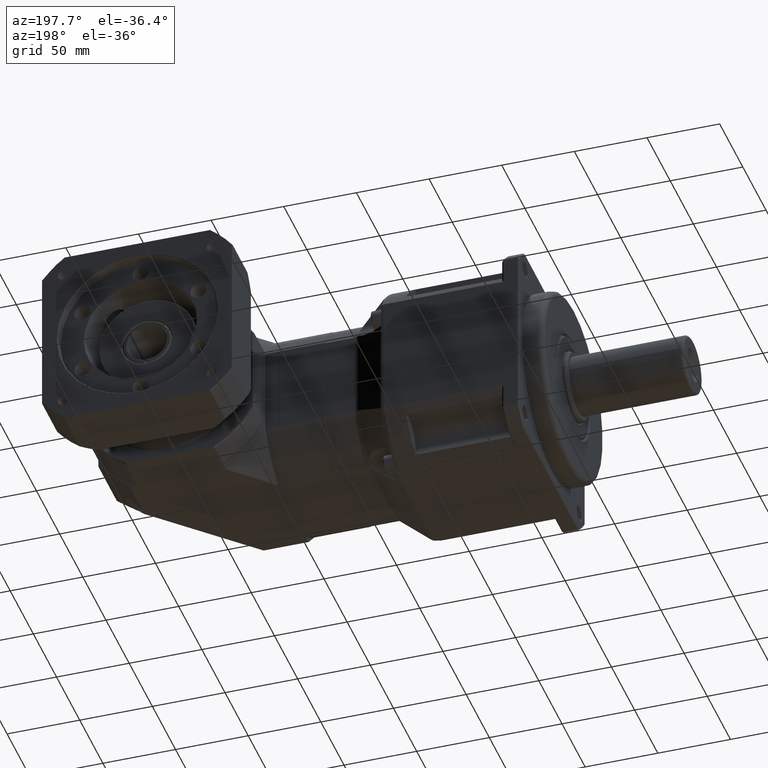
[diagram: clean part render]
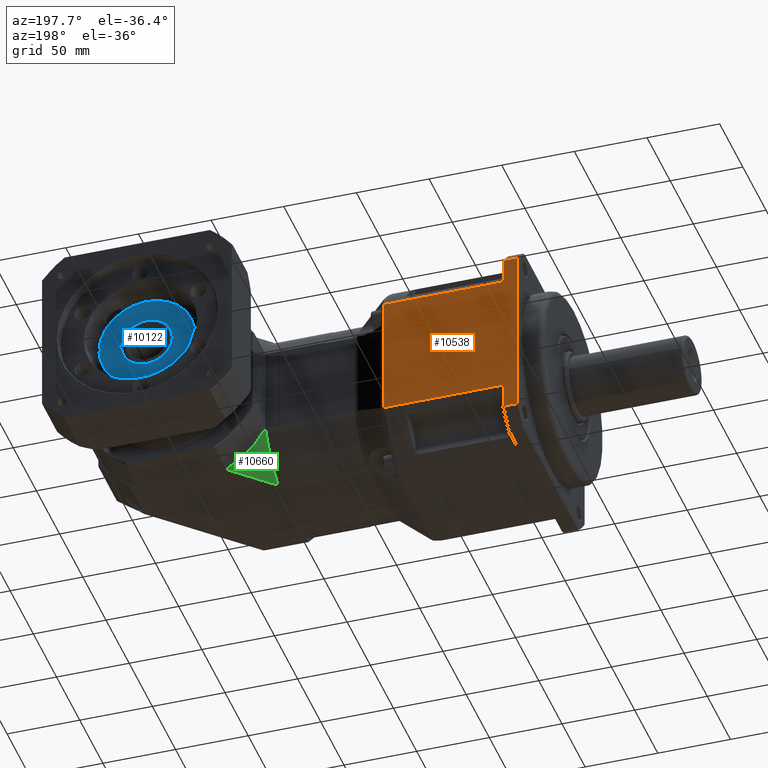
[diagram: same view with three faces highlighted in distinct colors, each labeled with its STEP entity id]
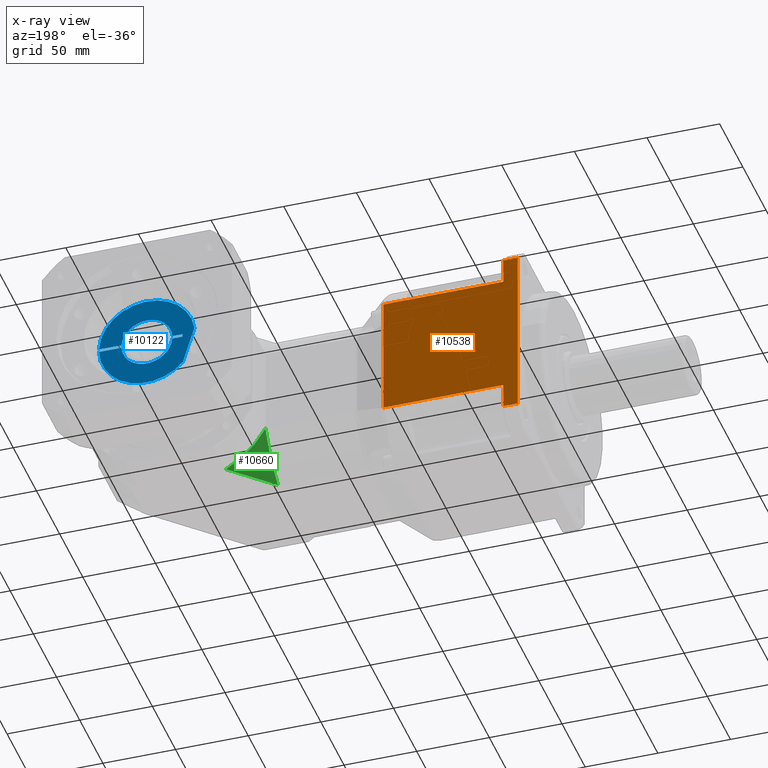
[diagram: x-ray of the same camera — body ghosted, the three highlighted faces saturated]
A machine part, auxiliary view with three faces highlighted in distinct colors.
The next image is the same camera in x-ray (body ghosted, the three faces saturated) — at least one of them is partly hidden behind the body in this view.
Their STEP definitions:

[orange] entity #10538 — the highlighted planar face has unit normal (-0, 1, -0).
#124=B_SPLINE_CURVE_WITH_KNOTS('',3,(#17457,#17458,#17459,#17460),
 .UNSPECIFIED.,.F.,.F.,(4,4),(0.231609461241533,0.26889615335008),
 .UNSPECIFIED.);
#125=B_SPLINE_CURVE_WITH_KNOTS('',3,(#17463,#17464,#17465,#17466),
 .UNSPECIFIED.,.F.,.F.,(4,4),(0.,0.0373027080613228),.UNSPECIFIED.);
#795=LINE('',#17419,#1323);
#799=LINE('',#17445,#1327);
#800=LINE('',#17447,#1328);
#801=LINE('',#17449,#1329);
#802=LINE('',#17451,#1330);
#803=LINE('',#17453,#1331);
#804=LINE('',#17455,#1332);
#805=LINE('',#17462,#1333);
#1323=VECTOR('',#13924,17.2746654490736);
#1327=VECTOR('',#13942,82.1624407477355);
#1328=VECTOR('',#13943,10.);
#1329=VECTOR('',#13944,118.57908753233);
#1330=VECTOR('',#13945,10.);
#1331=VECTOR('',#13946,17.2746654490736);
#1332=VECTOR('',#13947,82.1624407477355);
#1333=VECTOR('',#13948,83.9761787812403);
#1779=PLANE('',#11637);
#2710=FACE_OUTER_BOUND('',#3675,.T.);
#3675=EDGE_LOOP('',(#8270,#8271,#8272,#8273,#8274,#8275,#8276,#8277,#8278,
#8279));
#5081=VERTEX_POINT('',#17417);
#5082=VERTEX_POINT('',#17418);
#5089=VERTEX_POINT('',#17444);
#5090=VERTEX_POINT('',#17446);
#5091=VERTEX_POINT('',#17448);
#5092=VERTEX_POINT('',#17450);
#5093=VERTEX_POINT('',#17452);
#5094=VERTEX_POINT('',#17454);
#5095=VERTEX_POINT('',#17456);
#5096=VERTEX_POINT('',#17461);
#6214=EDGE_CURVE('',#5081,#5082,#795,.T.);
#6224=EDGE_CURVE('',#5089,#5082,#799,.T.);
#6225=EDGE_CURVE('',#5081,#5090,#800,.T.);
#6226=EDGE_CURVE('',#5091,#5090,#801,.T.);
#6227=EDGE_CURVE('',#5091,#5092,#802,.T.);
#6228=EDGE_CURVE('',#5093,#5092,#803,.T.);
#6229=EDGE_CURVE('',#5093,#5094,#804,.T.);
#6230=EDGE_CURVE('',#5095,#5094,#124,.T.);
#6231=EDGE_CURVE('',#5096,#5095,#805,.T.);
#6232=EDGE_CURVE('',#5089,#5096,#125,.T.);
#8270=ORIENTED_EDGE('',*,*,#6224,.T.);
#8271=ORIENTED_EDGE('',*,*,#6214,.F.);
#8272=ORIENTED_EDGE('',*,*,#6225,.T.);
#8273=ORIENTED_EDGE('',*,*,#6226,.F.);
#8274=ORIENTED_EDGE('',*,*,#6227,.T.);
#8275=ORIENTED_EDGE('',*,*,#6228,.F.);
#8276=ORIENTED_EDGE('',*,*,#6229,.T.);
#8277=ORIENTED_EDGE('',*,*,#6230,.F.);
#8278=ORIENTED_EDGE('',*,*,#6231,.F.);
#8279=ORIENTED_EDGE('',*,*,#6232,.F.);
#10538=ADVANCED_FACE('',(#2710),#1779,.T.);
#11637=AXIS2_PLACEMENT_3D('',#17443,#13940,#13941);
#13924=DIRECTION('',(7.96327511727489E-16,6.79992056402826E-15,1.));
#13940=DIRECTION('center_axis',(-1.66533453693795E-16,1.,-6.79992056402826E-15));
#13941=DIRECTION('ref_axis',(0.,-7.105427357601E-15,-1.));
#13942=DIRECTION('',(-1.,-1.66533453693789E-16,7.9632751172749E-16));
#13943=DIRECTION('',(-1.,-1.66533453693789E-16,7.9632751172749E-16));
#13944=DIRECTION('',(-7.96327511727489E-16,-6.79992056402826E-15,-1.));
#13945=DIRECTION('',(1.,1.66533453693789E-16,-7.9632751172749E-16));
#13946=DIRECTION('',(7.96327511727489E-16,6.79992056402826E-15,1.));
#13947=DIRECTION('',(1.,1.66533453693789E-16,-7.9632751172749E-16));
#13948=DIRECTION('',(2.48166054006035E-15,6.75848266240571E-15,1.));
#17417=CARTESIAN_POINT('',(-212.232413184371,121.641832456553,-173.317323755821));
#17418=CARTESIAN_POINT('',(-212.232413184371,121.641832456553,-156.042658306748));
#17419=CARTESIAN_POINT('',(-212.232413184371,121.641832456553,-78.5277799896562));
#17443=CARTESIAN_POINT('Origin',(-144.232413184371,121.641832456553,-43.0277799896563));
#17444=CARTESIAN_POINT('',(-130.069972436636,121.641832456553,-156.042658306748));
#17445=CARTESIAN_POINT('',(-144.232413184371,121.641832456553,-156.042658306748));
#17446=CARTESIAN_POINT('',(-222.232413184371,121.641832456553,-173.317323755821));
#17447=CARTESIAN_POINT('',(-144.232413184371,121.641832456553,-173.317323755821));
#17448=CARTESIAN_POINT('',(-222.232413184371,121.641832456553,-54.7382362234912));
#17449=CARTESIAN_POINT('',(-222.232413184371,121.641832456553,-78.5277799896562));
#17450=CARTESIAN_POINT('',(-212.232413184371,121.641832456553,-54.7382362234912));
#17451=CARTESIAN_POINT('',(-144.232413184371,121.641832456553,-54.7382362234913));
#17452=CARTESIAN_POINT('',(-212.232413184371,121.641832456553,-72.0129016725648));
#17453=CARTESIAN_POINT('',(-212.232413184371,121.641832456553,-78.5277799896562));
#17454=CARTESIAN_POINT('',(-130.069972436636,121.641832456553,-72.0129016725652));
#17455=CARTESIAN_POINT('',(-144.232413184371,121.641832456553,-72.0129016725649));
#17456=CARTESIAN_POINT('',(-129.700922631968,121.641832456553,-72.0396905967272));
#17457=CARTESIAN_POINT('Ctrl Pts',(-129.701053399744,121.641462299967,-72.0399075455455));
#17458=CARTESIAN_POINT('Ctrl Pts',(-129.822999981692,121.641676654801,-72.0220349851104));
#17459=CARTESIAN_POINT('Ctrl Pts',(-129.946060759789,121.641831120048,-72.0129017329612));
#17460=CARTESIAN_POINT('Ctrl Pts',(-130.069972437906,121.641831557224,-72.012902318567));
#17461=CARTESIAN_POINT('',(-129.70092261609,121.641832456553,-156.015869377967));
#17462=CARTESIAN_POINT('',(-129.70092261609,121.641832456553,-57.5203408311105));
#17463=CARTESIAN_POINT('Ctrl Pts',(-130.069972439682,121.641830305855,-156.042656745542));
#17464=CARTESIAN_POINT('Ctrl Pts',(-129.945639658395,121.6418296304,-156.042657652277));
#17465=CARTESIAN_POINT('Ctrl Pts',(-129.822580282076,121.641673946764,-156.033463741199));
#17466=CARTESIAN_POINT('Ctrl Pts',(-129.701053431712,121.641460559964,-156.015652465985));

[blue] entity #10122 — the highlighted planar face has unit normal (-0, 1, -0).
#572=LINE('',#15331,#1100);
#573=LINE('',#15336,#1101);
#574=LINE('',#15340,#1102);
#575=LINE('',#15342,#1103);
#576=LINE('',#15344,#1104);
#577=LINE('',#15348,#1105);
#1100=VECTOR('',#12271,27.0547592855674);
#1101=VECTOR('',#12276,15.5134397952851);
#1102=VECTOR('',#12279,7.02859479034386);
#1103=VECTOR('',#12280,2.);
#1104=VECTOR('',#12281,7.02859479034386);
#1105=VECTOR('',#12284,15.5134397952851);
#1597=PLANE('',#10916);
#2294=FACE_OUTER_BOUND('',#3020,.T.);
#3020=EDGE_LOOP('',(#6983,#6984,#6985,#6986,#6987,#6988,#6989,#6990,#6991,
#6992));
#4057=CIRCLE('',#10917,33.);
#4058=CIRCLE('',#10918,17.5);
#4059=CIRCLE('',#10919,17.5);
#4060=CIRCLE('',#10920,33.);
#4588=VERTEX_POINT('',#15309);
#4594=VERTEX_POINT('',#15327);
#4595=VERTEX_POINT('',#15333);
#4596=VERTEX_POINT('',#15335);
#4597=VERTEX_POINT('',#15337);
#4598=VERTEX_POINT('',#15339);
#4599=VERTEX_POINT('',#15341);
#4600=VERTEX_POINT('',#15343);
#4601=VERTEX_POINT('',#15345);
#4602=VERTEX_POINT('',#15347);
#5585=EDGE_CURVE('',#4588,#4594,#572,.T.);
#5586=EDGE_CURVE('',#4595,#4594,#4057,.T.);
#5587=EDGE_CURVE('',#4595,#4596,#573,.T.);
#5588=EDGE_CURVE('',#4597,#4596,#4058,.T.);
#5589=EDGE_CURVE('',#4597,#4598,#574,.T.);
#5590=EDGE_CURVE('',#4598,#4599,#575,.T.);
#5591=EDGE_CURVE('',#4599,#4600,#576,.T.);
#5592=EDGE_CURVE('',#4601,#4600,#4059,.T.);
#5593=EDGE_CURVE('',#4601,#4602,#577,.T.);
#5594=EDGE_CURVE('',#4588,#4602,#4060,.T.);
#6983=ORIENTED_EDGE('',*,*,#5585,.T.);
#6984=ORIENTED_EDGE('',*,*,#5586,.F.);
#6985=ORIENTED_EDGE('',*,*,#5587,.T.);
#6986=ORIENTED_EDGE('',*,*,#5588,.F.);
#6987=ORIENTED_EDGE('',*,*,#5589,.T.);
#6988=ORIENTED_EDGE('',*,*,#5590,.T.);
#6989=ORIENTED_EDGE('',*,*,#5591,.T.);
#6990=ORIENTED_EDGE('',*,*,#5592,.F.);
#6991=ORIENTED_EDGE('',*,*,#5593,.T.);
#6992=ORIENTED_EDGE('',*,*,#5594,.F.);
#10122=ADVANCED_FACE('',(#2294),#1597,.T.);
#10916=AXIS2_PLACEMENT_3D('',#15332,#12272,#12273);
#10917=AXIS2_PLACEMENT_3D('',#15334,#12274,#12275);
#10918=AXIS2_PLACEMENT_3D('',#15338,#12277,#12278);
#10919=AXIS2_PLACEMENT_3D('',#15346,#12282,#12283);
#10920=AXIS2_PLACEMENT_3D('',#15349,#12285,#12286);
#12271=DIRECTION('',(-0.291750494731008,4.72891697183442E-15,0.956494458334293));
#12272=DIRECTION('center_axis',(-2.12156922109039E-16,1.,-5.00872097802156E-15));
#12273=DIRECTION('ref_axis',(-0.00807702871444374,5.6843418860808E-15,0.99996738027155));
#12274=DIRECTION('center_axis',(2.12156922109039E-16,-1.,5.00872097802156E-15));
#12275=DIRECTION('ref_axis',(-0.99996738027155,-2.52605584769968E-16,-0.00807702871444366));
#12276=DIRECTION('',(-0.99996738027155,-2.52605584769967E-16,-0.00807702871444349));
#12277=DIRECTION('center_axis',(-2.12156922109039E-16,1.,-5.00872097802156E-15));
#12278=DIRECTION('ref_axis',(-0.99996738027155,-2.52605584769968E-16,-0.00807702871444366));
#12279=DIRECTION('',(-0.99996738027155,-2.52605584769967E-16,-0.00807702871444349));
#12280=DIRECTION('',(0.00807702871444366,-5.00684399735153E-15,-0.99996738027155));
#12281=DIRECTION('',(0.99996738027155,2.52605584769967E-16,0.00807702871444347));
#12282=DIRECTION('center_axis',(-2.12156922109039E-16,1.,-5.00872097802156E-15));
#12283=DIRECTION('ref_axis',(-0.99996738027155,-2.52605584769968E-16,-0.00807702871444366));
#12284=DIRECTION('',(0.99996738027155,2.52605584769967E-16,0.00807702871444347));
#12285=DIRECTION('center_axis',(2.12156922109039E-16,-1.,5.00872097802156E-15));
#12286=DIRECTION('ref_axis',(-0.99996738027155,-2.52605584769968E-16,-0.00807702871444366));
#15309=CARTESIAN_POINT('',(-11.5762766770372,183.641832456554,-135.748333545167));
#15327=CARTESIAN_POINT('',(-19.4695160834298,183.641832456554,-109.870606216954));
#15331=CARTESIAN_POINT('',(-13.3777861116078,183.641832456554,-129.842143763407));
#15332=CARTESIAN_POINT('Origin',(13.2675868156288,183.641832456554,-114.027779989657));
#15333=CARTESIAN_POINT('',(46.2432788351686,183.641832456554,-112.761393069139));
#15334=CARTESIAN_POINT('Origin',(13.2675868156288,183.641832456554,-114.027779989657));
#15335=CARTESIAN_POINT('',(30.7303450840769,183.641832456554,-112.886695567826));
#15336=CARTESIAN_POINT('',(34.513876644038,183.641832456554,-112.856134877892));
#15337=CARTESIAN_POINT('',(-4.21132551024825,183.641832456554,-113.168929650946));
#15338=CARTESIAN_POINT('Origin',(13.2675868156288,183.641832456554,-114.027779989657));
#15339=CARTESIAN_POINT('',(-11.2396910297387,183.641832456554,-113.22569981289));
#15340=CARTESIAN_POINT('',(34.513876644038,183.641832456554,-112.856134877892));
#15341=CARTESIAN_POINT('',(-11.2235369723098,183.641832456554,-115.225634573433));
#15342=CARTESIAN_POINT('',(-11.2356525153814,183.641832456554,-113.725683503025));
#15343=CARTESIAN_POINT('',(-4.19517145281936,183.641832456554,-115.168864411489));
#15344=CARTESIAN_POINT('',(1.02606343601672,183.641832456554,-115.126690971681));
#15345=CARTESIAN_POINT('',(30.7464991415058,183.641832456554,-114.886630328369));
#15346=CARTESIAN_POINT('Origin',(13.2675868156288,183.641832456554,-114.027779989657));
#15347=CARTESIAN_POINT('',(46.2594328925974,183.641832456554,-114.761327829682));
#15348=CARTESIAN_POINT('',(1.02606343601672,183.641832456554,-115.126690971681));
#15349=CARTESIAN_POINT('Origin',(13.2675868156288,183.641832456554,-114.027779989657));

[green] entity #10660 — the highlighted face is a freeform B-spline surface patch.
#25=B_SPLINE_SURFACE_WITH_KNOTS('',3,3,((#18809,#18810,#18811,#18812),(#18813,
#18814,#18815,#18816),(#18817,#18818,#18819,#18820),(#18821,#18822,#18823,
#18824),(#18825,#18826,#18827,#18828)),.UNSPECIFIED.,.F.,.F.,.F.,(4,1,4),
(4,4),(0.,0.571428571428571,1.),(0.,1.),.UNSPECIFIED.);
#940=LINE('',#18807,#1468);
#1468=VECTOR('',#14495,38.4512093377473);
#2832=FACE_OUTER_BOUND('',#3822,.T.);
#3822=EDGE_LOOP('',(#8938,#8939,#8940));
#4422=CIRCLE('',#11799,65.);
#4435=CIRCLE('',#11827,65.);
#5286=VERTEX_POINT('',#18709);
#5288=VERTEX_POINT('',#18713);
#5307=VERTEX_POINT('',#18783);
#6514=EDGE_CURVE('',#5288,#5286,#4422,.T.);
#6551=EDGE_CURVE('',#5307,#5288,#4435,.T.);
#6560=EDGE_CURVE('',#5286,#5307,#940,.T.);
#8938=ORIENTED_EDGE('',*,*,#6551,.F.);
#8939=ORIENTED_EDGE('',*,*,#6560,.F.);
#8940=ORIENTED_EDGE('',*,*,#6514,.F.);
#10660=ADVANCED_FACE('',(#2832),#25,.T.);
#11799=AXIS2_PLACEMENT_3D('',#18715,#14381,#14382);
#11827=AXIS2_PLACEMENT_3D('',#18785,#14460,#14461);
#14381=DIRECTION('center_axis',(-1.,-4.95042613617177E-16,2.56863691101278E-15));
#14382=DIRECTION('ref_axis',(2.56863691101278E-15,6.75848266240562E-15,
1.));
#14460=DIRECTION('center_axis',(-4.95042613617194E-16,1.,-6.75848266240562E-15));
#14461=DIRECTION('ref_axis',(-1.,-4.95042613617177E-16,2.56863691101278E-15));
#14495=DIRECTION('',(0.707106781186548,0.707106781186547,-6.1332926538412E-15));
#18709=CARTESIAN_POINT('',(-44.2324131843714,80.9527215890082,-171.527779989657));
#18713=CARTESIAN_POINT('',(-44.2324131843713,108.141832456553,-144.338669122112));
#18715=CARTESIAN_POINT('Origin',(-44.2324131843712,50.6418324565532,-114.027779989656));
#18783=CARTESIAN_POINT('',(-17.0433023168267,108.141832456553,-171.527779989657));
#18785=CARTESIAN_POINT('Origin',(13.2675868156288,108.141832456553,-114.027779989657));
#18807=CARTESIAN_POINT('',(-17.0433023168267,108.141832456553,-171.527779989657));
#18809=CARTESIAN_POINT('Ctrl Pts',(-44.2324131843713,108.141832456553,-144.338669122112));
#18810=CARTESIAN_POINT('Ctrl Pts',(-44.2324131843713,108.141832456553,-144.338669122112));
#18811=CARTESIAN_POINT('Ctrl Pts',(-44.2324131843713,108.141832456553,-144.338669122112));
#18812=CARTESIAN_POINT('Ctrl Pts',(-44.2324131843713,108.141832456553,-144.338669122112));
#18813=CARTESIAN_POINT('Ctrl Pts',(-40.7651890833885,108.141832456553,-150.916021074254));
#18814=CARTESIAN_POINT('Ctrl Pts',(-41.9196528579009,106.987368682041,-150.916021074254));
#18815=CARTESIAN_POINT('Ctrl Pts',(-43.077949409859,105.829072130082,-150.916021074254));
#18816=CARTESIAN_POINT('Ctrl Pts',(-44.2324131843713,104.67460835557,-150.916021074254));
#18817=CARTESIAN_POINT('Ctrl Pts',(-32.7030579285894,108.141832456553,-161.37157969235));
#18818=CARTESIAN_POINT('Ctrl Pts',(-36.5465461269534,104.298344258189,-161.37157969235));
#18819=CARTESIAN_POINT('Ctrl Pts',(-40.3889249860073,100.455965399135,-161.37157969235));
#18820=CARTESIAN_POINT('Ctrl Pts',(-44.2324131843714,96.6124772007709,-161.37157969235));
#18821=CARTESIAN_POINT('Ctrl Pts',(-21.9763162809331,108.141832456553,-168.92736191392));
#18822=CARTESIAN_POINT('Ctrl Pts',(-29.3950181471865,100.723130590299,-168.92736191392));
#18823=CARTESIAN_POINT('Ctrl Pts',(-36.813711318118,93.304437419368,-168.92736191392));
#18824=CARTESIAN_POINT('Ctrl Pts',(-44.2324131843714,85.8857355531146,-168.92736191392));
#18825=CARTESIAN_POINT('Ctrl Pts',(-17.0433023168267,108.141832456553,-171.527779989657));
#18826=CARTESIAN_POINT('Ctrl Pts',(-26.1063392726749,99.0787955007046,-171.527779989657));
#18827=CARTESIAN_POINT('Ctrl Pts',(-35.1693762285232,90.0157585448564,-171.527779989657));
#18828=CARTESIAN_POINT('Ctrl Pts',(-44.2324131843714,80.9527215890082,-171.527779989657));